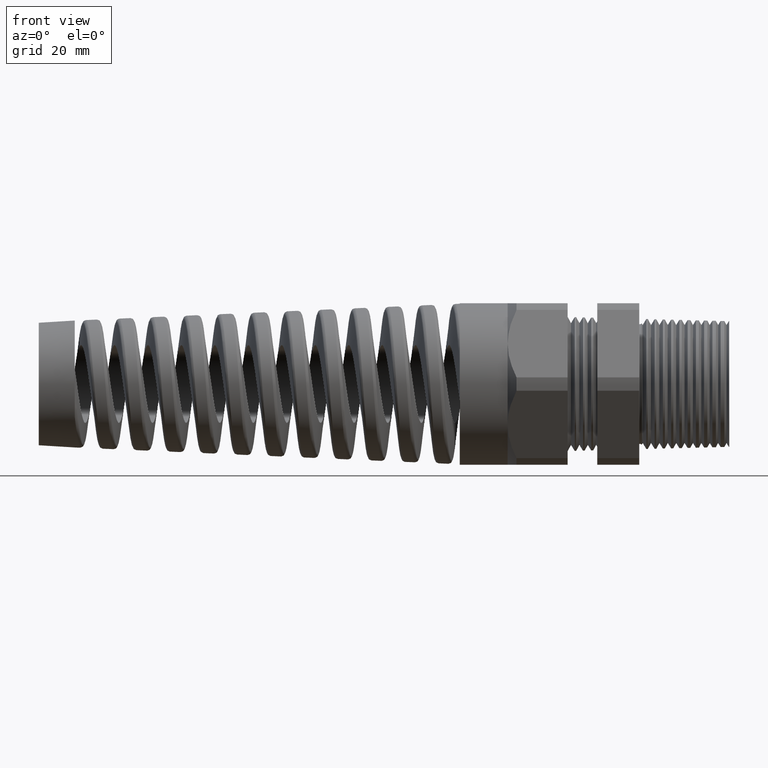
[diagram: clean part render]
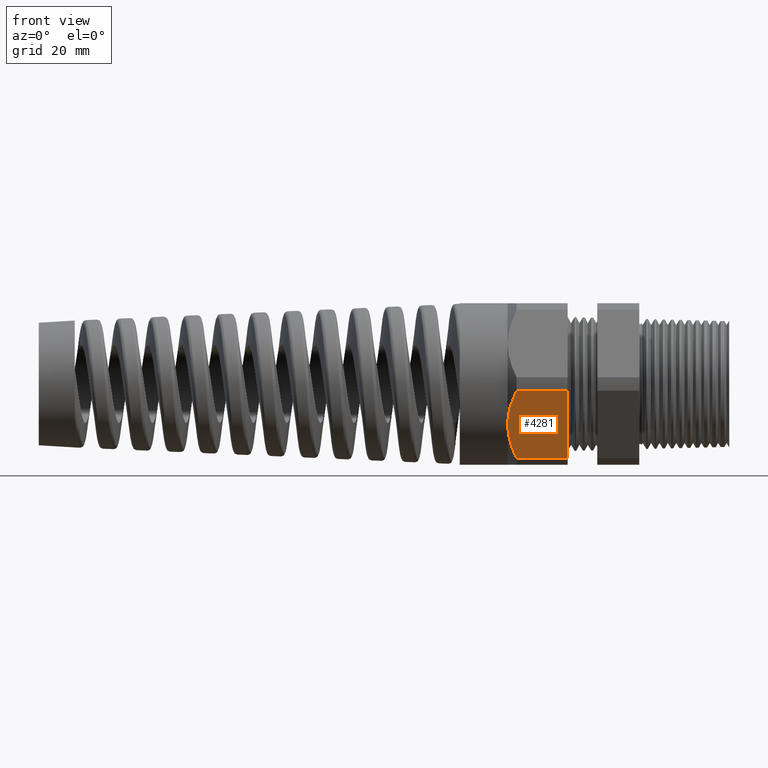
[diagram: same view with one face highlighted and labeled with its STEP entity id]
A machine part, front view. The second image highlights one B-rep face of the part: STEP entity #4281.
In plain terms, the highlighted planar face has unit normal (0, -0.866, -0.5).
Its self-contained STEP definition (entity closure, byte-faithful):
#4281 = ADVANCED_FACE ( 'NONE', ( #18254 ), #18253, .T. ) ;
#4447 = ORIENTED_EDGE ( 'NONE', *, *, #4448, .T. ) ;
#4448 = EDGE_CURVE ( 'NONE', #4449, #4450, #18844, .T. ) ;
#4449 = VERTEX_POINT ( 'NONE', #18840 ) ;
#4450 = VERTEX_POINT ( 'NONE', #18839 ) ;
#4455 = EDGE_LOOP ( 'NONE', ( #4447, #4523, #4526, #4478, #4479 ) ) ;
#4477 = EDGE_CURVE ( 'NONE', #4525, #4506, #18932, .T. ) ;
#4478 = ORIENTED_EDGE ( 'NONE', *, *, #4504, .F. ) ;
#4479 = ORIENTED_EDGE ( 'NONE', *, *, #4480, .F. ) ;
#4480 = EDGE_CURVE ( 'NONE', #4449, #4505, #18933, .T. ) ;
#4504 = EDGE_CURVE ( 'NONE', #4505, #4506, #18815, .T. ) ;
#4505 = VERTEX_POINT ( 'NONE', #18811 ) ;
#4506 = VERTEX_POINT ( 'NONE', #18810 ) ;
#4523 = ORIENTED_EDGE ( 'NONE', *, *, #4524, .T. ) ;
#4524 = EDGE_CURVE ( 'NONE', #4450, #4525, #18791, .T. ) ;
#4525 = VERTEX_POINT ( 'NONE', #18790 ) ;
#4526 = ORIENTED_EDGE ( 'NONE', *, *, #4477, .T. ) ;
#18249 = DIRECTION ( 'NONE',  ( 0.0000000000000000000, 0.5000000000000001100, -0.8660254037844386000 ) ) ;
#18250 = DIRECTION ( 'NONE',  ( 0.0000000000000000000, -0.8660254037844386000, -0.5000000000000001100 ) ) ;
#18251 = CARTESIAN_POINT ( 'NONE',  ( 0.2799999999999998600, -0.3313250556190259800, -0.4861281698472630400 ) ) ;
#18252 = AXIS2_PLACEMENT_3D ( 'NONE', #18251, #18250, #18249 ) ;
#18253 = PLANE ( 'NONE',  #18252 ) ;
#18254 = FACE_OUTER_BOUND ( 'NONE', #4455, .T. ) ;
#18774 = CARTESIAN_POINT ( 'NONE',  ( -1.173779527559055200, -0.4589934640057526900, -0.2650000000000002400 ) ) ;
#18775 = CARTESIAN_POINT ( 'NONE',  ( -1.173779527559055500, -0.4645197752363700000, -0.2554281481701324300 ) ) ;
#18776 = CARTESIAN_POINT ( 'NONE',  ( -1.173429801073962600, -0.4700966316160714600, -0.2457687495739749000 ) ) ;
#18777 = CARTESIAN_POINT ( 'NONE',  ( -1.172040755203298800, -0.4811768528785424500, -0.2265772433882700700 ) ) ;
#18778 = CARTESIAN_POINT ( 'NONE',  ( -1.171005978562913400, -0.4866745645865461800, -0.2170549273846412700 ) ) ;
#18779 = CARTESIAN_POINT ( 'NONE',  ( -1.166942497515101500, -0.5030481801450604800, -0.1886949933336943000 ) ) ;
#18780 = CARTESIAN_POINT ( 'NONE',  ( -1.162954343050062000, -0.5138045271803674000, -0.1700644537647000000 ) ) ;
#18781 = CARTESIAN_POINT ( 'NONE',  ( -1.147681728858641400, -0.5456613404998792400, -0.1148868345280680100 ) ) ;
#18782 = CARTESIAN_POINT ( 'NONE',  ( -1.133109412416612300, -0.5663521078376413400, -0.07904937425147715000 ) ) ;
#18783 = CARTESIAN_POINT ( 'NONE',  ( -1.115479527559055400, -0.5866618723924791300, -0.04387183015273716400 ) ) ;
#18790 = CARTESIAN_POINT ( 'NONE',  ( -1.173779527559055200, -0.4589934640057526900, -0.2650000000000002400 ) ) ;
#18791 = B_SPLINE_CURVE_WITH_KNOTS ( 'NONE', 3,
 ( #18783, #18782, #18781, #18780, #18779, #18778, #18777, #18776, #18775, #18774 ),
 .UNSPECIFIED., .F., .F.,
 ( 4, 2, 2, 2, 4 ),
 ( 2.483250567266958400E-007, 0.003328456037203365400, 0.004992559893276685000, 0.005824611821313344100, 0.006656663749350004100 ),
 .UNSPECIFIED. ) ;
#18810 = CARTESIAN_POINT ( 'NONE',  ( -1.115479527559055400, -0.3313250556190259800, -0.4861281698472632000 ) ) ;
#18811 = CARTESIAN_POINT ( 'NONE',  ( -0.7800787401574805800, -0.3313250556190258700, -0.4861281698472630400 ) ) ;
#18812 = DIRECTION ( 'NONE',  ( -1.000000000000000000, 0.0000000000000000000, 0.0000000000000000000 ) ) ;
#18813 = VECTOR ( 'NONE', #18812, 39.37007874015748100 ) ;
#18814 = CARTESIAN_POINT ( 'NONE',  ( 0.2799999999999998600, -0.3313250556190258700, -0.4861281698472630400 ) ) ;
#18815 = LINE ( 'NONE', #18814, #18813 ) ;
#18839 = CARTESIAN_POINT ( 'NONE',  ( -1.115479527559055400, -0.5866618723924791300, -0.04387183015273716400 ) ) ;
#18840 = CARTESIAN_POINT ( 'NONE',  ( -0.7800787401574805800, -0.5866618723924791300, -0.04387183015273716400 ) ) ;
#18841 = DIRECTION ( 'NONE',  ( -1.000000000000000000, 0.0000000000000000000, 0.0000000000000000000 ) ) ;
#18842 = VECTOR ( 'NONE', #18841, 39.37007874015748100 ) ;
#18843 = CARTESIAN_POINT ( 'NONE',  ( 0.2799999999999998600, -0.5866618723924791300, -0.04387183015273716400 ) ) ;
#18844 = LINE ( 'NONE', #18843, #18842 ) ;
#18923 = DIRECTION ( 'NONE',  ( 0.0000000000000000000, 0.5000000000000002200, -0.8660254037844386000 ) ) ;
#18924 = VECTOR ( 'NONE', #18923, 39.37007874015747400 ) ;
#18925 = CARTESIAN_POINT ( 'NONE',  ( -0.7800787401574805800, -0.3489934640057524900, -0.4555255888325767100 ) ) ;
#18926 = CARTESIAN_POINT ( 'NONE',  ( -1.115479527559055400, -0.3313250556190259800, -0.4861281698472632000 ) ) ;
#18927 = CARTESIAN_POINT ( 'NONE',  ( -1.133131244554131300, -0.3516599709661860100, -0.4509070632983698300 ) ) ;
#18928 = CARTESIAN_POINT ( 'NONE',  ( -1.147909079623190800, -0.3726775389205834200, -0.4145035677498215000 ) ) ;
#18929 = CARTESIAN_POINT ( 'NONE',  ( -1.168202496647472000, -0.4152540171503035200, -0.3407589442485967600 ) ) ;
#18930 = CARTESIAN_POINT ( 'NONE',  ( -1.173779527559054800, -0.4369033769668389500, -0.3032611530950170600 ) ) ;
#18931 = CARTESIAN_POINT ( 'NONE',  ( -1.173779527559055200, -0.4589934640057526900, -0.2650000000000002400 ) ) ;
#18932 = B_SPLINE_CURVE_WITH_KNOTS ( 'NONE', 3,
 ( #18931, #18930, #18929, #18928, #18927, #18926 ),
 .UNSPECIFIED., .F., .F.,
 ( 4, 2, 4 ),
 ( 0.006656663749350004100, 0.009982589261723358300, 0.01330851477409671100 ),
 .UNSPECIFIED. ) ;
#18933 = LINE ( 'NONE', #18925, #18924 ) ;